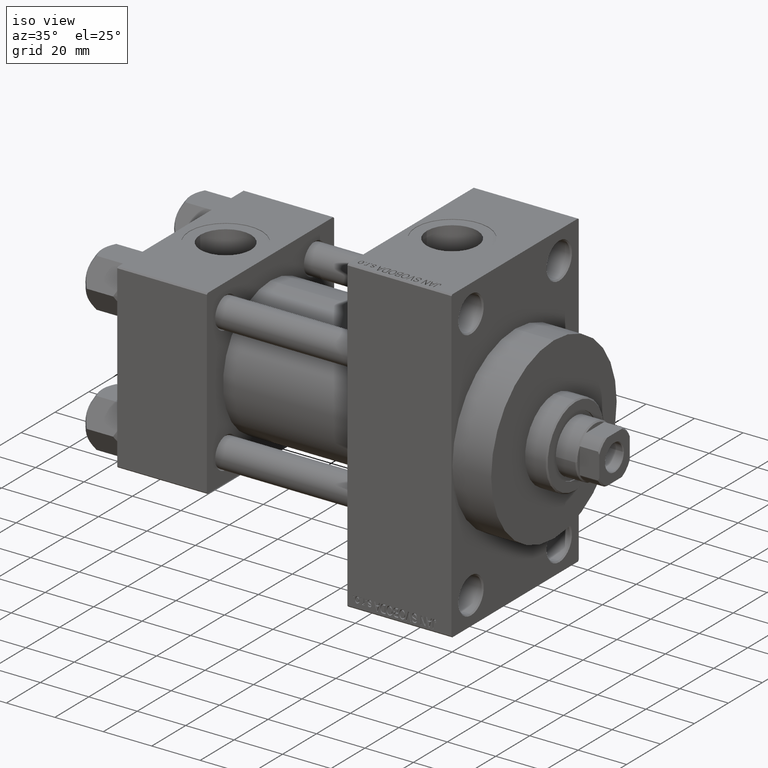
[diagram: clean part render]
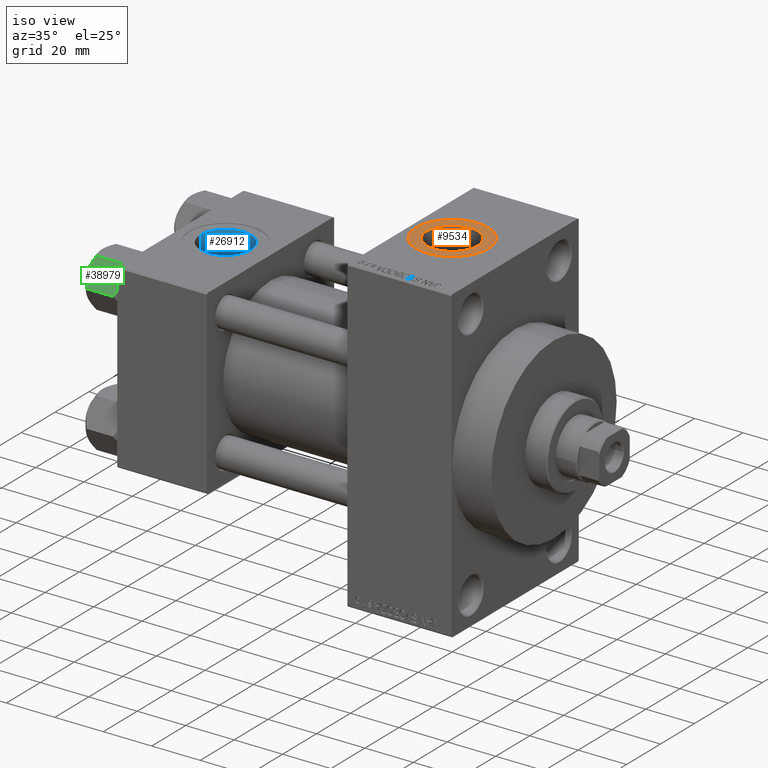
[diagram: same view with three faces highlighted in distinct colors, each labeled with its STEP entity id]
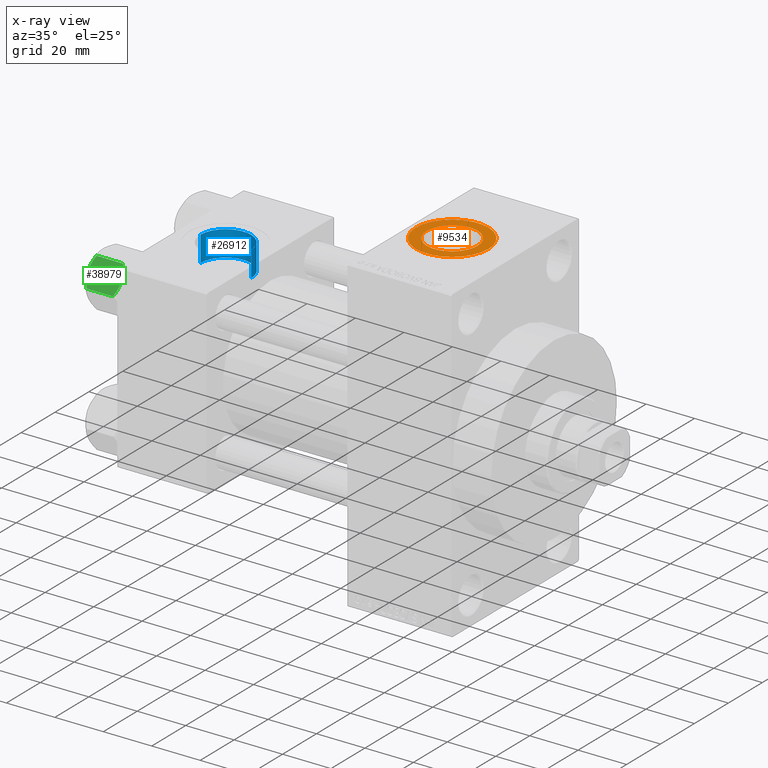
[diagram: x-ray of the same camera — body ghosted, the three highlighted faces saturated]
A machine part, iso view with three faces highlighted in distinct colors.
The next image is the same camera in x-ray (body ghosted, the three faces saturated) — at least one of them is partly hidden behind the body in this view.
Their STEP definitions:

[orange] entity #9534 — the highlighted planar face has unit normal (0, 0, 1).
#1172 = PLANE ( 'NONE',  #47442 ) ;
#1813 = EDGE_LOOP ( 'NONE', ( #46373, #7534 ) ) ;
#4122 = CARTESIAN_POINT ( 'NONE',  ( 96.99999999999998579, -1.000540873061397009E-14, 63.79999999999996874 ) ) ;
#5935 = AXIS2_PLACEMENT_3D ( 'NONE', #48953, #29734, #29985 ) ;
#6266 = CARTESIAN_POINT ( 'NONE',  ( 112.0000000000000000, -1.184237892933500047E-14, 63.79999999999996874 ) ) ;
#6377 = CARTESIAN_POINT ( 'NONE',  ( 112.0000000000000000, -1.184237892933500047E-14, 63.79999999999996874 ) ) ;
#7534 = ORIENTED_EDGE ( 'NONE', *, *, #16438, .T. ) ;
#8302 = CIRCLE ( 'NONE', #5935, 10.48000000000000398 ) ;
#9534 = ADVANCED_FACE ( 'NONE', ( #35039, #24567 ), #1172, .T. ) ;
#10120 = AXIS2_PLACEMENT_3D ( 'NONE', #6266, #47895, #28216 ) ;
#11231 = CARTESIAN_POINT ( 'NONE',  ( 127.0000000000000000, -1.184237892933500047E-14, 63.79999999999996874 ) ) ;
#12014 = AXIS2_PLACEMENT_3D ( 'NONE', #23662, #35879, #16431 ) ;
#12179 = VERTEX_POINT ( 'NONE', #11231 ) ;
#16332 = DIRECTION ( 'NONE',  ( 0.000000000000000000, 0.000000000000000000, 1.000000000000000000 ) ) ;
#16431 = DIRECTION ( 'NONE',  ( 1.000000000000000000, 0.000000000000000000, 0.000000000000000000 ) ) ;
#16438 = EDGE_CURVE ( 'NONE', #41909, #12179, #49125, .T. ) ;
#16748 = ORIENTED_EDGE ( 'NONE', *, *, #41704, .T. ) ;
#23662 = CARTESIAN_POINT ( 'NONE',  ( 112.0000000000000000, -1.184237892933500047E-14, 63.79999999999996874 ) ) ;
#23808 = DIRECTION ( 'NONE',  ( 1.000000000000000000, 0.000000000000000000, -0.000000000000000000 ) ) ;
#24279 = VERTEX_POINT ( 'NONE', #39534 ) ;
#24567 = FACE_OUTER_BOUND ( 'NONE', #1813, .T. ) ;
#25651 = AXIS2_PLACEMENT_3D ( 'NONE', #6377, #29056, #40516 ) ;
#25715 = VERTEX_POINT ( 'NONE', #36411 ) ;
#27265 = CIRCLE ( 'NONE', #25651, 10.48000000000000398 ) ;
#28216 = DIRECTION ( 'NONE',  ( 1.000000000000000000, 0.000000000000000000, 0.000000000000000000 ) ) ;
#28889 = EDGE_CURVE ( 'NONE', #12179, #41909, #32720, .T. ) ;
#29056 = DIRECTION ( 'NONE',  ( -0.000000000000000000, -0.000000000000000000, -1.000000000000000000 ) ) ;
#29734 = DIRECTION ( 'NONE',  ( -0.000000000000000000, -0.000000000000000000, -1.000000000000000000 ) ) ;
#29985 = DIRECTION ( 'NONE',  ( 1.000000000000000000, 0.000000000000000000, 0.000000000000000000 ) ) ;
#32720 = CIRCLE ( 'NONE', #12014, 15.00000000000000000 ) ;
#33296 = EDGE_LOOP ( 'NONE', ( #16748, #44991 ) ) ;
#35039 = FACE_BOUND ( 'NONE', #33296, .T. ) ;
#35879 = DIRECTION ( 'NONE',  ( 0.000000000000000000, 0.000000000000000000, 1.000000000000000000 ) ) ;
#36411 = CARTESIAN_POINT ( 'NONE',  ( 122.4800000000000040, -1.055894908382857498E-14, 63.79999999999996874 ) ) ;
#39534 = CARTESIAN_POINT ( 'NONE',  ( 101.5199999999999960, -1.184237892933500047E-14, 63.79999999999996874 ) ) ;
#40516 = DIRECTION ( 'NONE',  ( 1.000000000000000000, 0.000000000000000000, 0.000000000000000000 ) ) ;
#41704 = EDGE_CURVE ( 'NONE', #24279, #25715, #27265, .T. ) ;
#41909 = VERTEX_POINT ( 'NONE', #4122 ) ;
#42533 = CARTESIAN_POINT ( 'NONE',  ( 112.0000000000000000, -1.184237892933500047E-14, 63.79999999999996874 ) ) ;
#44991 = ORIENTED_EDGE ( 'NONE', *, *, #48406, .T. ) ;
#46373 = ORIENTED_EDGE ( 'NONE', *, *, #28889, .T. ) ;
#47442 = AXIS2_PLACEMENT_3D ( 'NONE', #42533, #16332, #23808 ) ;
#47895 = DIRECTION ( 'NONE',  ( 0.000000000000000000, 0.000000000000000000, 1.000000000000000000 ) ) ;
#48406 = EDGE_CURVE ( 'NONE', #25715, #24279, #8302, .T. ) ;
#48953 = CARTESIAN_POINT ( 'NONE',  ( 112.0000000000000000, -1.184237892933500047E-14, 63.79999999999996874 ) ) ;
#49125 = CIRCLE ( 'NONE', #10120, 15.00000000000000000 ) ;

[blue] entity #26912 — the highlighted cylindrical surface (edge-blend (fillet) strip) has radius 10.48 mm, axis along (0, 0, 1).
#131 = CARTESIAN_POINT ( 'NONE',  ( 8.019999999999999574, -3.920740582423995006E-15, 37.29999999999999716 ) ) ;
#2456 = EDGE_LOOP ( 'NONE', ( #22107, #19471, #23448, #5946 ) ) ;
#3266 = VERTEX_POINT ( 'NONE', #47326 ) ;
#5946 = ORIENTED_EDGE ( 'NONE', *, *, #45941, .T. ) ;
#5999 = EDGE_CURVE ( 'NONE', #24633, #36776, #43493, .T. ) ;
#9326 = DIRECTION ( 'NONE',  ( -0.000000000000000000, -0.000000000000000000, 1.000000000000000000 ) ) ;
#10453 = LINE ( 'NONE', #18393, #45562 ) ;
#13889 = AXIS2_PLACEMENT_3D ( 'NONE', #48780, #48533, #26324 ) ;
#17083 = CIRCLE ( 'NONE', #13889, 10.48000000000000043 ) ;
#18393 = CARTESIAN_POINT ( 'NONE',  ( 8.019999999999999574, -3.920740582423995006E-15, 26.69999999999999929 ) ) ;
#18448 = CARTESIAN_POINT ( 'NONE',  ( 28.98000000000000043, -5.204170427930421283E-15, 26.69999999999999929 ) ) ;
#19471 = ORIENTED_EDGE ( 'NONE', *, *, #35354, .F. ) ;
#22107 = ORIENTED_EDGE ( 'NONE', *, *, #41486, .F. ) ;
#23448 = ORIENTED_EDGE ( 'NONE', *, *, #5999, .T. ) ;
#24633 = VERTEX_POINT ( 'NONE', #18448 ) ;
#24974 = CARTESIAN_POINT ( 'NONE',  ( 18.50000000000000000, -5.204170427930421283E-15, 26.69999999999999929 ) ) ;
#25405 = DIRECTION ( 'NONE',  ( -0.000000000000000000, -0.000000000000000000, 1.000000000000000000 ) ) ;
#26324 = DIRECTION ( 'NONE',  ( 1.000000000000000000, 0.000000000000000000, 0.000000000000000000 ) ) ;
#26912 = ADVANCED_FACE ( 'NONE', ( #46101 ), #30629, .F. ) ;
#28112 = VECTOR ( 'NONE', #9326, 1000.000000000000000 ) ;
#28725 = DIRECTION ( 'NONE',  ( 0.000000000000000000, 0.000000000000000000, 1.000000000000000000 ) ) ;
#29205 = DIRECTION ( 'NONE',  ( 1.000000000000000000, 0.000000000000000000, 0.000000000000000000 ) ) ;
#30629 = CYLINDRICAL_SURFACE ( 'NONE', #34232, 10.48000000000000043 ) ;
#31368 = DIRECTION ( 'NONE',  ( -0.000000000000000000, -0.000000000000000000, 1.000000000000000000 ) ) ;
#32594 = AXIS2_PLACEMENT_3D ( 'NONE', #24974, #28725, #29205 ) ;
#34232 = AXIS2_PLACEMENT_3D ( 'NONE', #45609, #31368, #42861 ) ;
#35237 = CARTESIAN_POINT ( 'NONE',  ( 28.98000000000000043, -5.204170427930421283E-15, 26.69999999999999929 ) ) ;
#35354 = EDGE_CURVE ( 'NONE', #24633, #3266, #42986, .T. ) ;
#36776 = VERTEX_POINT ( 'NONE', #38456 ) ;
#38456 = CARTESIAN_POINT ( 'NONE',  ( 28.98000000000000043, -5.204170427930421283E-15, 37.29999999999999716 ) ) ;
#41486 = EDGE_CURVE ( 'NONE', #3266, #41905, #10453, .T. ) ;
#41905 = VERTEX_POINT ( 'NONE', #131 ) ;
#42861 = DIRECTION ( 'NONE',  ( 1.000000000000000000, 0.000000000000000000, 0.000000000000000000 ) ) ;
#42986 = CIRCLE ( 'NONE', #32594, 10.48000000000000043 ) ;
#43493 = LINE ( 'NONE', #35237, #28112 ) ;
#45562 = VECTOR ( 'NONE', #25405, 1000.000000000000000 ) ;
#45609 = CARTESIAN_POINT ( 'NONE',  ( 18.50000000000000000, -5.204170427930421283E-15, 26.69999999999999929 ) ) ;
#45941 = EDGE_CURVE ( 'NONE', #36776, #41905, #17083, .T. ) ;
#46101 = FACE_OUTER_BOUND ( 'NONE', #2456, .T. ) ;
#47326 = CARTESIAN_POINT ( 'NONE',  ( 8.019999999999999574, -3.920740582423995006E-15, 26.69999999999999929 ) ) ;
#48533 = DIRECTION ( 'NONE',  ( 0.000000000000000000, 0.000000000000000000, 1.000000000000000000 ) ) ;
#48780 = CARTESIAN_POINT ( 'NONE',  ( 18.50000000000000000, -5.204170427930421283E-15, 37.29999999999999716 ) ) ;

[green] entity #38979 — the highlighted planar face has unit normal (0, 0.866, -0.5).
#2955 = EDGE_CURVE ( 'NONE', #17612, #6031, #16898, .T. ) ;
#3977 = CARTESIAN_POINT ( 'NONE',  ( -11.16498164529022219, -0.7881149087337223635, -12.89823354668505040 ) ) ;
#4144 = DIRECTION ( 'NONE',  ( -0.000000000000000000, -0.000000000000000000, 1.000000000000000000 ) ) ;
#4442 = CARTESIAN_POINT ( 'NONE',  ( -8.715000000000006963, -5.031607595987586556, 0.000000000000000000 ) ) ;
#5328 = CARTESIAN_POINT ( 'NONE',  ( -8.715000000000006963, -5.031607595987586556, -14.00000000000000000 ) ) ;
#6023 = B_SPLINE_CURVE_WITH_KNOTS ( 'NONE', 3,
 ( #46052, #41565, #7669, #22848, #38576, #23339, #11139, #4442 ),
 .UNSPECIFIED., .F., .F.,
 ( 4, 2, 2, 4 ),
 ( 2.544312114893457383E-07, 0.003011550106433538623, 0.004517197944044561847, 0.006022845781655586372 ),
 .UNSPECIFIED. ) ;
#6031 = VERTEX_POINT ( 'NONE', #20757 ) ;
#7669 = CARTESIAN_POINT ( 'NONE',  ( -10.69859855102500923, -1.595914123792257611, -0.7141438259524607313 ) ) ;
#7866 = LINE ( 'NONE', #18815, #48723 ) ;
#8005 = EDGE_CURVE ( 'NONE', #27934, #27693, #25633, .T. ) ;
#9055 = CARTESIAN_POINT ( 'NONE',  ( -7.455303369716809847, -7.213466161761383333, -13.69973261901326644 ) ) ;
#9538 = CARTESIAN_POINT ( 'NONE',  ( -8.460569896449619876, -5.472293462311856871, -14.00000000000000888 ) ) ;
#10299 = ORIENTED_EDGE ( 'NONE', *, *, #8005, .F. ) ;
#10681 = DIRECTION ( 'NONE',  ( -0.000000000000000000, -0.000000000000000000, 1.000000000000000000 ) ) ;
#10796 = CARTESIAN_POINT ( 'NONE',  ( -5.810000000000000497, -10.06321519197517844, -14.00000000000000000 ) ) ;
#11139 = CARTESIAN_POINT ( 'NONE',  ( -8.969430103550386946, -4.590921729663310025, 6.662949392646161370E-15 ) ) ;
#11508 = CARTESIAN_POINT ( 'NONE',  ( -11.61999999999999922, 6.270720075409452187E-15, -1.556784808024810562 ) ) ;
#14062 = EDGE_CURVE ( 'NONE', #41583, #19442, #17344, .T. ) ;
#15398 = CARTESIAN_POINT ( 'NONE',  ( -8.715000000000006963, -5.031607595987586556, 0.000000000000000000 ) ) ;
#16692 = EDGE_LOOP ( 'NONE', ( #19959, #29346, #27391, #42570, #10299, #45024 ) ) ;
#16898 = B_SPLINE_CURVE_WITH_KNOTS ( 'NONE', 3,
 ( #28481, #27989, #43217, #9055, #39473, #24241, #9538, #5328 ),
 .UNSPECIFIED., .F., .F.,
 ( 4, 2, 2, 4 ),
 ( 2.544312114906334931E-07, 0.003011550106433543393, 0.004517197944044570521, 0.006022845781655596781 ),
 .UNSPECIFIED. ) ;
#17344 = B_SPLINE_CURVE_WITH_KNOTS ( 'NONE', 3,
 ( #20267, #38503, #46222, #46730, #42486, #35238 ),
 .UNSPECIFIED., .F., .F.,
 ( 4, 2, 4 ),
 ( 0.006022845781655586372, 0.009013049135303635023, 0.01200325248895168367 ),
 .UNSPECIFIED. ) ;
#17612 = VERTEX_POINT ( 'NONE', #40118 ) ;
#18815 = CARTESIAN_POINT ( 'NONE',  ( -5.810000000000000497, -10.06321519197517844, -14.00000000000000000 ) ) ;
#19442 = VERTEX_POINT ( 'NONE', #33571 ) ;
#19959 = ORIENTED_EDGE ( 'NONE', *, *, #2955, .F. ) ;
#20267 = CARTESIAN_POINT ( 'NONE',  ( -8.715000000000006963, -5.031607595987586556, 0.000000000000000000 ) ) ;
#20757 = CARTESIAN_POINT ( 'NONE',  ( -8.715000000000006963, -5.031607595987586556, -14.00000000000000000 ) ) ;
#22316 = B_SPLINE_CURVE_WITH_KNOTS ( 'NONE', 3,
 ( #49335, #29872, #42095, #41344, #3977, #23127 ),
 .UNSPECIFIED., .F., .F.,
 ( 4, 2, 4 ),
 ( 0.006022845781655596781, 0.009013049135303641962, 0.01200325248895168714 ),
 .UNSPECIFIED. ) ;
#22795 = EDGE_CURVE ( 'NONE', #6031, #27934, #22316, .T. ) ;
#22848 = CARTESIAN_POINT ( 'NONE',  ( -9.974696630283190757, -2.849749030213787115, -0.3002673809867329457 ) ) ;
#23127 = CARTESIAN_POINT ( 'NONE',  ( -11.61999999999999922, 6.270720075510426383E-15, -12.44321519197518988 ) ) ;
#23339 = CARTESIAN_POINT ( 'NONE',  ( -9.227666995912100489, -4.143642311704120118, -0.03994118060690279165 ) ) ;
#24241 = CARTESIAN_POINT ( 'NONE',  ( -8.202333004087902779, -5.919572880271047666, -13.96005881939309745 ) ) ;
#25505 = DIRECTION ( 'NONE',  ( -0.4999999999999994449, 0.8660254037844389297, 0.000000000000000000 ) ) ;
#25633 = LINE ( 'NONE', #33349, #25873 ) ;
#25873 = VECTOR ( 'NONE', #10681, 1000.000000000000000 ) ;
#27391 = ORIENTED_EDGE ( 'NONE', *, *, #14062, .F. ) ;
#27693 = VERTEX_POINT ( 'NONE', #11508 ) ;
#27934 = VERTEX_POINT ( 'NONE', #48378 ) ;
#27989 = CARTESIAN_POINT ( 'NONE',  ( -6.265545725125283738, -9.274186850887380373, -12.89876091710046779 ) ) ;
#28481 = CARTESIAN_POINT ( 'NONE',  ( -5.810000000000000497, -10.06321519197517844, -12.44321519197518633 ) ) ;
#29346 = ORIENTED_EDGE ( 'NONE', *, *, #31121, .T. ) ;
#29872 = CARTESIAN_POINT ( 'NONE',  ( -9.220295946303428636, -4.156409344131446026, -14.00000000000000711 ) ) ;
#31121 = EDGE_CURVE ( 'NONE', #17612, #19442, #7866, .T. ) ;
#33223 = DIRECTION ( 'NONE',  ( 0.8660254037844390407, 0.4999999999999995004, 0.000000000000000000 ) ) ;
#33349 = CARTESIAN_POINT ( 'NONE',  ( -11.61999999999999922, 6.288644352490894150E-15, -14.00000000000000000 ) ) ;
#33571 = CARTESIAN_POINT ( 'NONE',  ( -5.810000000000000497, -10.06321519197517844, -1.556784808024813893 ) ) ;
#35238 = CARTESIAN_POINT ( 'NONE',  ( -5.810000000000000497, -10.06321519197517844, -1.556784808024813893 ) ) ;
#36151 = EDGE_CURVE ( 'NONE', #27693, #41583, #6023, .T. ) ;
#38503 = CARTESIAN_POINT ( 'NONE',  ( -8.209704053696567527, -5.906805847843720869, 6.159623592433269699E-15 ) ) ;
#38576 = CARTESIAN_POINT ( 'NONE',  ( -9.729165168613654657, -3.275021996682076608, -0.1903979688073365595 ) ) ;
#38979 = ADVANCED_FACE ( 'NONE', ( #44478 ), #40245, .F. ) ;
#39473 = CARTESIAN_POINT ( 'NONE',  ( -7.700834831386346835, -6.788193195293090731, -13.80960203119266438 ) ) ;
#40118 = CARTESIAN_POINT ( 'NONE',  ( -5.810000000000000497, -10.06321519197517844, -12.44321519197518633 ) ) ;
#40245 = PLANE ( 'NONE',  #46310 ) ;
#41344 = CARTESIAN_POINT ( 'NONE',  ( -10.69662495661650148, -1.599332489581326344, -13.28854452935655317 ) ) ;
#41565 = CARTESIAN_POINT ( 'NONE',  ( -11.16445427487471420, -0.7890283410877914072, -1.101239082899528432 ) ) ;
#41583 = VERTEX_POINT ( 'NONE', #15398 ) ;
#42095 = CARTESIAN_POINT ( 'NONE',  ( -9.716999946243698005, -3.296092779912219939, -13.84547602999602667 ) ) ;
#42486 = CARTESIAN_POINT ( 'NONE',  ( -6.265018354709776638, -9.275100283241451748, -1.101766453314952043 ) ) ;
#42570 = ORIENTED_EDGE ( 'NONE', *, *, #36151, .F. ) ;
#43217 = CARTESIAN_POINT ( 'NONE',  ( -6.731401448974989599, -8.467301068182909063, -13.28585617404753272 ) ) ;
#44478 = FACE_OUTER_BOUND ( 'NONE', #16692, .T. ) ;
#45024 = ORIENTED_EDGE ( 'NONE', *, *, #22795, .F. ) ;
#46052 = CARTESIAN_POINT ( 'NONE',  ( -11.61999999999999922, 6.270720075409452187E-15, -1.556784808024810562 ) ) ;
#46222 = CARTESIAN_POINT ( 'NONE',  ( -7.713000053756304375, -6.767122412062951398, -0.1545239700039803266 ) ) ;
#46310 = AXIS2_PLACEMENT_3D ( 'NONE', #10796, #33223, #25505 ) ;
#46730 = CARTESIAN_POINT ( 'NONE',  ( -6.733375043383495573, -8.463882702393842550, -0.7114554706434480513 ) ) ;
#48378 = CARTESIAN_POINT ( 'NONE',  ( -11.61999999999999922, 6.270720075510426383E-15, -12.44321519197518988 ) ) ;
#48723 = VECTOR ( 'NONE', #4144, 1000.000000000000000 ) ;
#49335 = CARTESIAN_POINT ( 'NONE',  ( -8.715000000000006963, -5.031607595987586556, -14.00000000000000000 ) ) ;